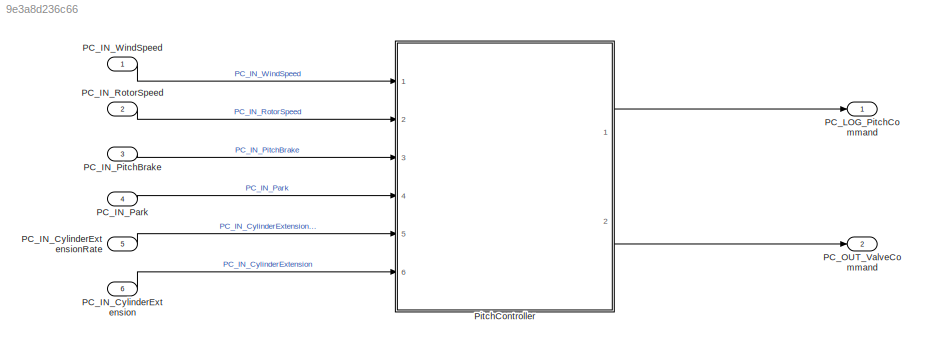
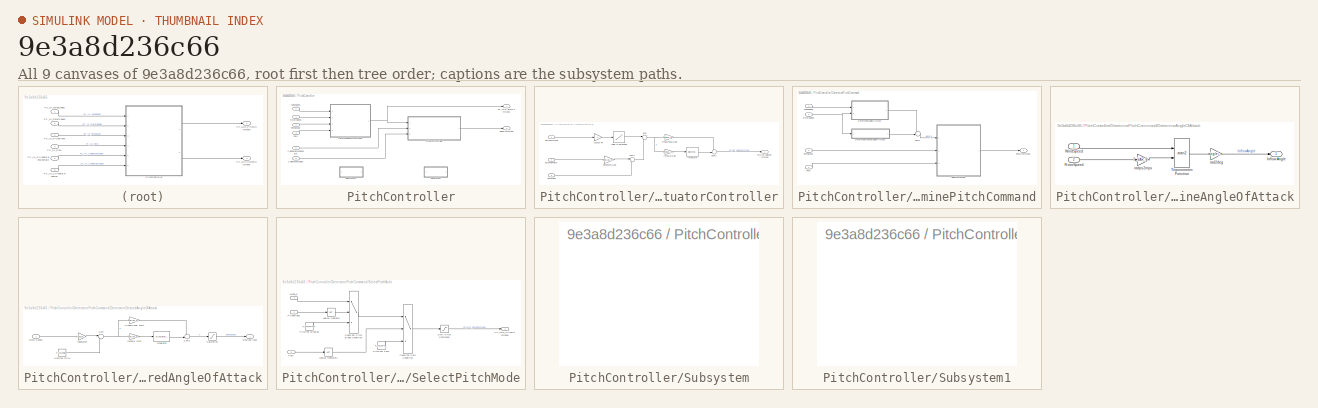
[diagram: thumbnail index - all 9 canvases of the model, root first then tree order]
MODEL slx_9e3a8d236c66
KIND model
CONFIG AbsTol = auto
CONFIG EnableMultiTasking = on
CONFIG FixedStep = Ts_pitch_controller
CONFIG MaxStep = 0.01
CONFIG MinStep = auto
CONFIG PreLoadFcn = Pitch_Controller_Data_Dictionary
CONFIG RelTol = 1e-6
CONFIG SampleTimeConstraint = Unconstrained
CONFIG Solver = FixedStepDiscrete
CONFIG SolverName = FixedStepDiscrete
CONFIG StartTime = 0.0
CONFIG StopTime = 80
BLOCK [Inport] PC_IN_CylinderExtension
  IconDisplay = Port number
  OutDataTypeStr = single
  Port = 6
  PortDimensions = 3
BLOCK [Inport] PC_IN_CylinderExtensionRate
  IconDisplay = Port number
  OutDataTypeStr = single
  Port = 5
  PortDimensions = 3
BLOCK [Inport] PC_IN_Park
  IconDisplay = Port number
  OutDataTypeStr = boolean
  Port = 4
BLOCK [Inport] PC_IN_PitchBrake
  IconDisplay = Port number
  OutDataTypeStr = boolean
  Port = 3
BLOCK [Inport] PC_IN_RotorSpeed
  IconDisplay = Port number
  OutDataTypeStr = single
  Port = 2
BLOCK [Inport] PC_IN_WindSpeed
  IconDisplay = Port number
  OutDataTypeStr = single
BLOCK [Outport] PC_LOG_PitchCommand
  IconDisplay = Port number
  OutDataTypeStr = single
BLOCK [Outport] PC_OUT_ValveCommand
  IconDisplay = Port number
  OutDataTypeStr = single
  Port = 2
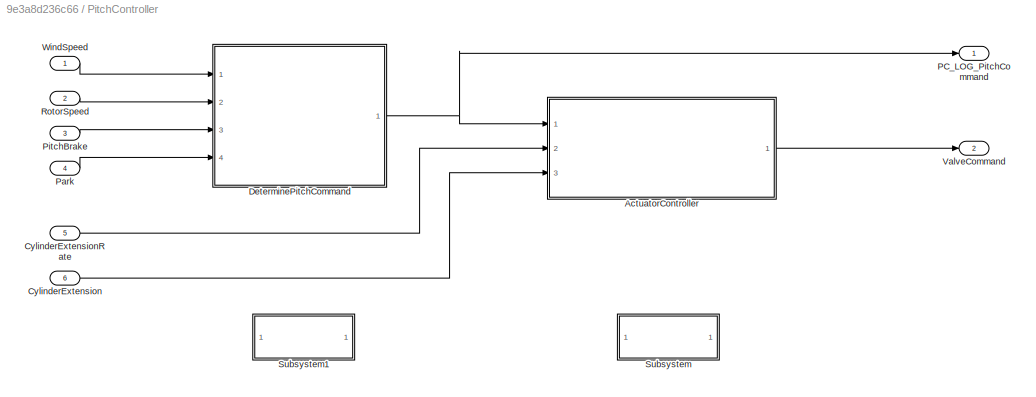
BLOCK [SubSystem] PitchController
  Ports = [6, 2]
  RequestExecContextInheritance = off
  Variant = off
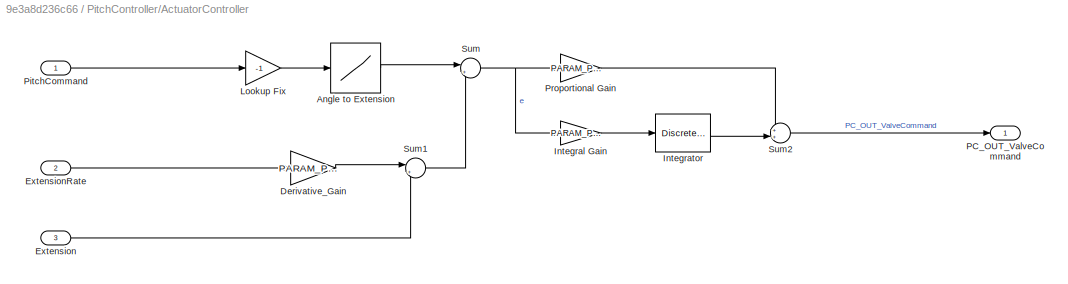
BLOCK [SubSystem] PitchController/ActuatorController
  Ports = [3, 1]
  RequestExecContextInheritance = off
  Variant = off
BLOCK [Lookup] PitchController/ActuatorController/Angle to Extension
  InputValues = Actuator_Lookup_angle
  SaturateOnIntegerOverflow = off
  Table = Actuator_Lookup_extension
BLOCK [Gain] PitchController/ActuatorController/Derivative_Gain
  Gain = PARAM_PCTRL_Dgain
  OutDataTypeStr = Inherit: Inherit via internal rule
  ParamDataTypeStr = Inherit: Inherit via internal rule
  SaturateOnIntegerOverflow = off
BLOCK [Inport] PitchController/ActuatorController/Extension
  IconDisplay = Port number
  Port = 3
BLOCK [Inport] PitchController/ActuatorController/ExtensionRate
  IconDisplay = Port number
  Port = 2
BLOCK [Gain] PitchController/ActuatorController/Integral Gain
  Gain = PARAM_PCTRL_Igain
BLOCK [DiscreteIntegrator] PitchController/ActuatorController/Integrator
  AttributesFormatString = Ts=%<SampleTime>\nIC_Mode=%<InitialConditionMode>
  ICPrevOutput = DiscIntNeverNeededParam
  ICPrevScaledInput = DiscIntNeverNeededParam
  InitialConditionSetting = State (most efficient)
  Ports = [1, 1]
  SampleTime = -1
BLOCK [Gain] PitchController/ActuatorController/Lookup Fix
  Gain = -1
  OutDataTypeStr = Inherit: Inherit via internal rule
  ParamDataTypeStr = Inherit: Inherit via internal rule
  SaturateOnIntegerOverflow = off
BLOCK [Outport] PitchController/ActuatorController/PC_OUT_ValveCommand
  IconDisplay = Port number
BLOCK [Inport] PitchController/ActuatorController/PitchCommand
  IconDisplay = Port number
BLOCK [Gain] PitchController/ActuatorController/Proportional Gain
  Gain = PARAM_PCTRL_Pgain
BLOCK [Sum] PitchController/ActuatorController/Sum
  IconShape = round
  Inputs = |+-
  OutDataTypeStr = Inherit: Inherit via internal rule
  Ports = [2, 1]
  SaturateOnIntegerOverflow = off
BLOCK [Sum] PitchController/ActuatorController/Sum1
  IconShape = round
  Inputs = |++
  OutDataTypeStr = Inherit: Inherit via internal rule
  Ports = [2, 1]
  SaturateOnIntegerOverflow = off
BLOCK [Sum] PitchController/ActuatorController/Sum2
  IconShape = round
  Inputs = ++|
  Ports = [2, 1]
BLOCK [Inport] PitchController/CylinderExtension
  IconDisplay = Port number
  Port = 6
BLOCK [Inport] PitchController/CylinderExtensionRate
  IconDisplay = Port number
  Port = 5
BLOCK [SubSystem] PitchController/DeterminePitchCommand
  Ports = [4, 1]
  RequestExecContextInheritance = off
  Variant = off
BLOCK [SubSystem] PitchController/DeterminePitchCommand/DetermineAngleOfAttack
  Ports = [2, 1]
  RequestExecContextInheritance = off
  Variant = off
BLOCK [Outport] PitchController/DeterminePitchCommand/DetermineAngleOfAttack/InflowAngle
  IconDisplay = Port number
BLOCK [Inport] PitchController/DeterminePitchCommand/DetermineAngleOfAttack/RotorSpeed
  IconDisplay = Port number
  Port = 2
BLOCK [Trigonometry] PitchController/DeterminePitchCommand/DetermineAngleOfAttack/Trigonometric Function
  Operator = atan2
  Ports = [2, 1]
BLOCK [Inport] PitchController/DeterminePitchCommand/DetermineAngleOfAttack/WindSpeed
  IconDisplay = Port number
BLOCK [Gain] PitchController/DeterminePitchCommand/DetermineAngleOfAttack/rad2deg
  Gain = single(180/pi)
  OutDataTypeStr = Inherit: Inherit via internal rule
  ParamDataTypeStr = Inherit: Inherit via internal rule
  SaturateOnIntegerOverflow = off
BLOCK [Gain] PitchController/DeterminePitchCommand/DetermineAngleOfAttack/radps2mps
  Gain = P_VAR_Blade_Length
  OutDataTypeStr = Inherit: Inherit via internal rule
  ParamDataTypeStr = Inherit: Inherit via internal rule
  SaturateOnIntegerOverflow = off
BLOCK [SubSystem] PitchController/DeterminePitchCommand/DetermineDesiredAngleOfAttack
  Ports = [1, 1]
  RequestExecContextInheritance = off
  Variant = off
BLOCK [Outport] PitchController/DeterminePitchCommand/DetermineDesiredAngleOfAttack/DesiredAlpha
  IconDisplay = Port number
BLOCK [Gain] PitchController/DeterminePitchCommand/DetermineDesiredAngleOfAttack/Integral Gain
  Gain = PARAM_PCTRL_alpha_Igain
BLOCK [DiscreteIntegrator] PitchController/DeterminePitchCommand/DetermineDesiredAngleOfAttack/Integrator
  AttributesFormatString = Ts=%<SampleTime>\nIC_Mode=%<InitialConditionMode>
  ICPrevOutput = DiscIntNeverNeededParam
  ICPrevScaledInput = DiscIntNeverNeededParam
  InitialConditionSetting = State (most efficient)
  LimitOutput = on
  LowerSaturationLimit = P_VAR_alpha_min
  Ports = [1, 1]
  SampleTime = -1
  UpperSaturationLimit = P_VAR_alpha_max
BLOCK [Constant] PitchController/DeterminePitchCommand/DetermineDesiredAngleOfAttack/Nominal RPM
  OutDataTypeStr = single
  Value = P_VAR_Rotor_nominal_rpm
BLOCK [Gain] PitchController/DeterminePitchCommand/DetermineDesiredAngleOfAttack/Proportional Gain
  Gain = PARAM_PCTRL_alpha_Pgain
BLOCK [Inport] PitchController/DeterminePitchCommand/DetermineDesiredAngleOfAttack/Rotor_Speed
  IconDisplay = Port number
BLOCK [Saturate] PitchController/DeterminePitchCommand/DetermineDesiredAngleOfAttack/Saturation
  AttributesFormatString = Upper=%<UpperLimit>\nLower=%<LowerLimit>
  InputPortMap = u0
  LowerLimit = -inf
  Ports = [1, 1]
  UpperLimit = P_VAR_alpha_max
BLOCK [Sum] PitchController/DeterminePitchCommand/DetermineDesiredAngleOfAttack/Sum
  IconShape = round
  Inputs = |-+
  OutDataTypeStr = Inherit: Inherit via internal rule
  Ports = [2, 1]
  SaturateOnIntegerOverflow = off
BLOCK [Sum] PitchController/DeterminePitchCommand/DetermineDesiredAngleOfAttack/Sum1
  IconShape = round
  Inputs = ++|
  Ports = [2, 1]
BLOCK [Gain] PitchController/DeterminePitchCommand/DetermineDesiredAngleOfAttack/radps2rpm
  Gain = radps2rpm
  OutDataTypeStr = Inherit: Inherit via internal rule
  ParamDataTypeStr = Inherit: Inherit via internal rule
  SaturateOnIntegerOverflow = off
BLOCK [Inport] PitchController/DeterminePitchCommand/Park
  IconDisplay = Port number
  Port = 4
BLOCK [Inport] PitchController/DeterminePitchCommand/PitchBrake
  IconDisplay = Port number
  Port = 3
BLOCK [Outport] PitchController/DeterminePitchCommand/PitchCommand
  IconDisplay = Port number
BLOCK [Inport] PitchController/DeterminePitchCommand/RotorSpeed
  IconDisplay = Port number
  Port = 2
BLOCK [SubSystem] PitchController/DeterminePitchCommand/SelectPitchMode
  Ports = [3, 1]
  RequestExecContextInheritance = off
  Variant = off
BLOCK [Switch] PitchController/DeterminePitchCommand/SelectPitchMode/Check For Park Condition
  AttributesFormatString = Criteria: %<Criteria>
  Criteria = u2 ~= 0
  SaturateOnIntegerOverflow = off
BLOCK [Switch] PitchController/DeterminePitchCommand/SelectPitchMode/Check For Pitch Brake Condition
  AttributesFormatString = Criteria: %<Criteria>
  Criteria = u2 ~= 0
  SaturateOnIntegerOverflow = off
BLOCK [Saturate] PitchController/DeterminePitchCommand/SelectPitchMode/Limit Pitch Command
  AttributesFormatString = Upper=%<UpperLimit>\nLower=%<LowerLimit>
  InputPortMap = u0
  LowerLimit = P_VAR_emergency_brake_pitch_angle
  Ports = [1, 1]
  UpperLimit = P_VAR_LUT_max_pitch_angle
BLOCK [Logic] PitchController/DeterminePitchCommand/SelectPitchMode/Logical Operator
  AllPortsSameDT = off
  Operator = NOT
  OutDataTypeStr = boolean
  Ports = [1, 1]
BLOCK [Logic] PitchController/DeterminePitchCommand/SelectPitchMode/Logical Operator1
  AllPortsSameDT = off
  Operator = NOT
  OutDataTypeStr = boolean
  Ports = [1, 1]
BLOCK [Outport] PitchController/DeterminePitchCommand/SelectPitchMode/PC_LOG_PitchCommand
  IconDisplay = Port number
BLOCK [Inport] PitchController/DeterminePitchCommand/SelectPitchMode/Park
  IconDisplay = Port number
  Port = 3
BLOCK [Constant] PitchController/DeterminePitchCommand/SelectPitchMode/Pitch For Braking
  OutDataTypeStr = single
  Value = P_VAR_emergency_brake_pitch_angle
BLOCK [Constant] PitchController/DeterminePitchCommand/SelectPitchMode/Pitch For Park
  OutDataTypeStr = single
  Value = P_VAR_park_pitch_angle
BLOCK [Inport] PitchController/DeterminePitchCommand/SelectPitchMode/PitchBrake
  IconDisplay = Port number
  Port = 2
BLOCK [Inport] PitchController/DeterminePitchCommand/SelectPitchMode/alpha_e
  IconDisplay = Port number
BLOCK [Sum] PitchController/DeterminePitchCommand/Sum1
  IconShape = round
  Inputs = +-|
  OutDataTypeStr = single
  Ports = [2, 1]
  SaturateOnIntegerOverflow = off
BLOCK [Inport] PitchController/DeterminePitchCommand/WindSpeed
  IconDisplay = Port number
BLOCK [Outport] PitchController/PC_LOG_PitchCommand
  IconDisplay = Port number
BLOCK [Inport] PitchController/Park
  IconDisplay = Port number
  Port = 4
BLOCK [Inport] PitchController/PitchBrake
  IconDisplay = Port number
  Port = 3
BLOCK [Inport] PitchController/RotorSpeed
  IconDisplay = Port number
  Port = 2
BLOCK [SubSystem] PitchController/Subsystem
  Ports = []
  RequestExecContextInheritance = off
  Variant = off
BLOCK [SubSystem] PitchController/Subsystem1
  Ports = []
  RequestExecContextInheritance = off
  Variant = off
BLOCK [Outport] PitchController/ValveCommand
  IconDisplay = Port number
  Port = 2
BLOCK [Inport] PitchController/WindSpeed
  IconDisplay = Port number
LINE PC_IN_CylinderExtension:1 -> PitchController:6
LINE PC_IN_CylinderExtensionRate:1 -> PitchController:5
LINE PC_IN_Park:1 -> PitchController:4
LINE PC_IN_PitchBrake:1 -> PitchController:3
LINE PC_IN_RotorSpeed:1 -> PitchController:2
LINE PC_IN_WindSpeed:1 -> PitchController:1
LINE PitchController/ActuatorController/Angle to Extension:1 -> PitchController/ActuatorController/Sum:1
LINE PitchController/ActuatorController/Derivative_Gain:1 -> PitchController/ActuatorController/Sum1:1
LINE PitchController/ActuatorController/Extension:1 -> PitchController/ActuatorController/Sum1:2
LINE PitchController/ActuatorController/ExtensionRate:1 -> PitchController/ActuatorController/Derivative_Gain:1
LINE PitchController/ActuatorController/Integral Gain:1 -> PitchController/ActuatorController/Integrator:1
LINE PitchController/ActuatorController/Integrator:1 -> PitchController/ActuatorController/Sum2:2
LINE PitchController/ActuatorController/Lookup Fix:1 -> PitchController/ActuatorController/Angle to Extension:1
LINE PitchController/ActuatorController/PitchCommand:1 -> PitchController/ActuatorController/Lookup Fix:1
LINE PitchController/ActuatorController/Proportional Gain:1 -> PitchController/ActuatorController/Sum2:1
LINE PitchController/ActuatorController/Sum1:1 -> PitchController/ActuatorController/Sum:2
LINE PitchController/ActuatorController/Sum2:1 -> PitchController/ActuatorController/PC_OUT_ValveCommand:1
NET PitchController/ActuatorController/Sum:1 -> PitchController/ActuatorController/Integral Gain:1, PitchController/ActuatorController/Proportional Gain:1
LINE PitchController/ActuatorController:1 -> PitchController/ValveCommand:1
LINE PitchController/CylinderExtension:1 -> PitchController/ActuatorController:3
LINE PitchController/CylinderExtensionRate:1 -> PitchController/ActuatorController:2
LINE PitchController/DeterminePitchCommand/DetermineAngleOfAttack/RotorSpeed:1 -> PitchController/DeterminePitchCommand/DetermineAngleOfAttack/radps2mps:1
LINE PitchController/DeterminePitchCommand/DetermineAngleOfAttack/Trigonometric Function:1 -> PitchController/DeterminePitchCommand/DetermineAngleOfAttack/rad2deg:1
LINE PitchController/DeterminePitchCommand/DetermineAngleOfAttack/WindSpeed:1 -> PitchController/DeterminePitchCommand/DetermineAngleOfAttack/Trigonometric Function:1
LINE PitchController/DeterminePitchCommand/DetermineAngleOfAttack/rad2deg:1 -> PitchController/DeterminePitchCommand/DetermineAngleOfAttack/InflowAngle:1
LINE PitchController/DeterminePitchCommand/DetermineAngleOfAttack/radps2mps:1 -> PitchController/DeterminePitchCommand/DetermineAngleOfAttack/Trigonometric Function:2
LINE PitchController/DeterminePitchCommand/DetermineAngleOfAttack:1 -> PitchController/DeterminePitchCommand/Sum1:1
LINE PitchController/DeterminePitchCommand/DetermineDesiredAngleOfAttack/Integral Gain:1 -> PitchController/DeterminePitchCommand/DetermineDesiredAngleOfAttack/Integrator:1
LINE PitchController/DeterminePitchCommand/DetermineDesiredAngleOfAttack/Integrator:1 -> PitchController/DeterminePitchCommand/DetermineDesiredAngleOfAttack/Sum1:2
LINE PitchController/DeterminePitchCommand/DetermineDesiredAngleOfAttack/Nominal RPM:1 -> PitchController/DeterminePitchCommand/DetermineDesiredAngleOfAttack/Sum:2
LINE PitchController/DeterminePitchCommand/DetermineDesiredAngleOfAttack/Proportional Gain:1 -> PitchController/DeterminePitchCommand/DetermineDesiredAngleOfAttack/Sum1:1
LINE PitchController/DeterminePitchCommand/DetermineDesiredAngleOfAttack/Rotor_Speed:1 -> PitchController/DeterminePitchCommand/DetermineDesiredAngleOfAttack/radps2rpm:1
LINE PitchController/DeterminePitchCommand/DetermineDesiredAngleOfAttack/Saturation:1 -> PitchController/DeterminePitchCommand/DetermineDesiredAngleOfAttack/DesiredAlpha:1
LINE PitchController/DeterminePitchCommand/DetermineDesiredAngleOfAttack/Sum1:1 -> PitchController/DeterminePitchCommand/DetermineDesiredAngleOfAttack/Saturation:1
NET PitchController/DeterminePitchCommand/DetermineDesiredAngleOfAttack/Sum:1 -> PitchController/DeterminePitchCommand/DetermineDesiredAngleOfAttack/Integral Gain:1, PitchController/DeterminePitchCommand/DetermineDesiredAngleOfAttack/Proportional Gain:1
LINE PitchController/DeterminePitchCommand/DetermineDesiredAngleOfAttack/radps2rpm:1 -> PitchController/DeterminePitchCommand/DetermineDesiredAngleOfAttack/Sum:1
LINE PitchController/DeterminePitchCommand/DetermineDesiredAngleOfAttack:1 -> PitchController/DeterminePitchCommand/Sum1:2
LINE PitchController/DeterminePitchCommand/Park:1 -> PitchController/DeterminePitchCommand/SelectPitchMode:3
LINE PitchController/DeterminePitchCommand/PitchBrake:1 -> PitchController/DeterminePitchCommand/SelectPitchMode:2
NET PitchController/DeterminePitchCommand/RotorSpeed:1 -> PitchController/DeterminePitchCommand/DetermineAngleOfAttack:2, PitchController/DeterminePitchCommand/DetermineDesiredAngleOfAttack:1
LINE PitchController/DeterminePitchCommand/SelectPitchMode/Check For Park Condition:1 -> PitchController/DeterminePitchCommand/SelectPitchMode/Limit Pitch Command:1
LINE PitchController/DeterminePitchCommand/SelectPitchMode/Check For Pitch Brake Condition:1 -> PitchController/DeterminePitchCommand/SelectPitchMode/Check For Park Condition:1
LINE PitchController/DeterminePitchCommand/SelectPitchMode/Limit Pitch Command:1 -> PitchController/DeterminePitchCommand/SelectPitchMode/PC_LOG_PitchCommand:1
LINE PitchController/DeterminePitchCommand/SelectPitchMode/Logical Operator1:1 -> PitchController/DeterminePitchCommand/SelectPitchMode/Check For Park Condition:2
LINE PitchController/DeterminePitchCommand/SelectPitchMode/Logical Operator:1 -> PitchController/DeterminePitchCommand/SelectPitchMode/Check For Pitch Brake Condition:2
LINE PitchController/DeterminePitchCommand/SelectPitchMode/Park:1 -> PitchController/DeterminePitchCommand/SelectPitchMode/Logical Operator1:1
LINE PitchController/DeterminePitchCommand/SelectPitchMode/Pitch For Braking:1 -> PitchController/DeterminePitchCommand/SelectPitchMode/Check For Pitch Brake Condition:3
LINE PitchController/DeterminePitchCommand/SelectPitchMode/Pitch For Park:1 -> PitchController/DeterminePitchCommand/SelectPitchMode/Check For Park Condition:3
LINE PitchController/DeterminePitchCommand/SelectPitchMode/PitchBrake:1 -> PitchController/DeterminePitchCommand/SelectPitchMode/Logical Operator:1
LINE PitchController/DeterminePitchCommand/SelectPitchMode/alpha_e:1 -> PitchController/DeterminePitchCommand/SelectPitchMode/Check For Pitch Brake Condition:1
LINE PitchController/DeterminePitchCommand/SelectPitchMode:1 -> PitchController/DeterminePitchCommand/PitchCommand:1
LINE PitchController/DeterminePitchCommand/Sum1:1 -> PitchController/DeterminePitchCommand/SelectPitchMode:1
LINE PitchController/DeterminePitchCommand/WindSpeed:1 -> PitchController/DeterminePitchCommand/DetermineAngleOfAttack:1
NET PitchController/DeterminePitchCommand:1 -> PitchController/ActuatorController:1, PitchController/PC_LOG_PitchCommand:1
LINE PitchController/Park:1 -> PitchController/DeterminePitchCommand:4
LINE PitchController/PitchBrake:1 -> PitchController/DeterminePitchCommand:3
LINE PitchController/RotorSpeed:1 -> PitchController/DeterminePitchCommand:2
LINE PitchController/WindSpeed:1 -> PitchController/DeterminePitchCommand:1
LINE PitchController:1 -> PC_LOG_PitchCommand:1
LINE PitchController:2 -> PC_OUT_ValveCommand:1
note: NET lines group one-source signal fan-out (src -> all destinations, sorted); 1:1 wires keep LINE
